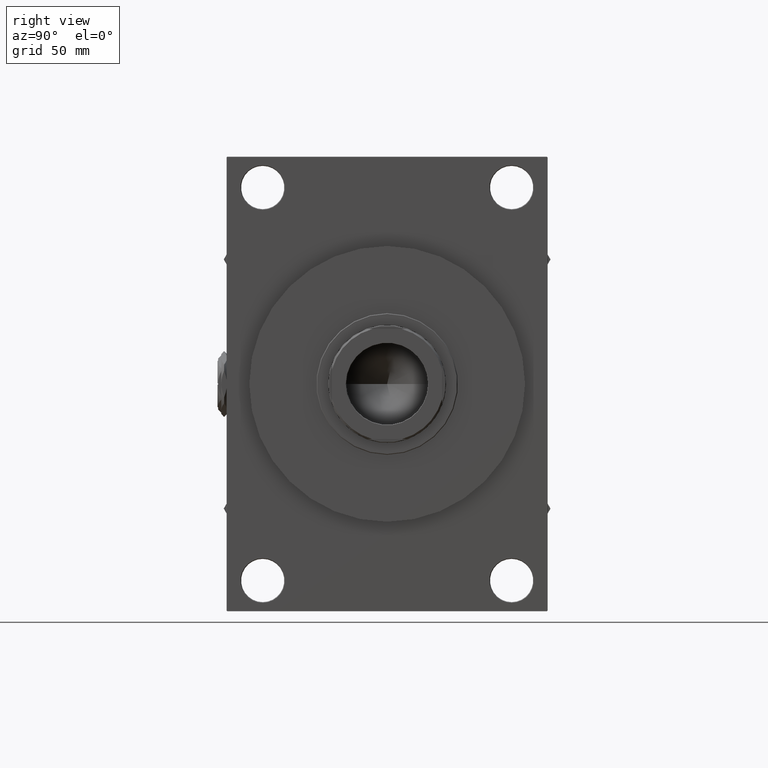
[diagram: clean part render]
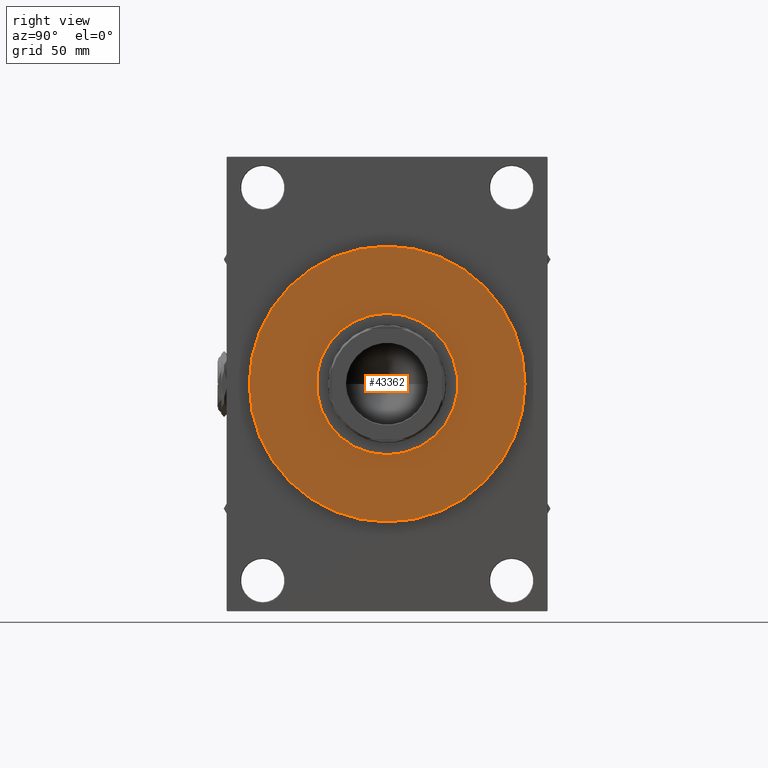
[diagram: same view with one face highlighted and labeled with its STEP entity id]
A machine part, right view. The second image highlights one B-rep face of the part: STEP entity #43362.
In plain terms, the highlighted planar face has unit normal (1, -0, -0).
Its self-contained STEP definition (entity closure, byte-faithful):
#993 = VERTEX_POINT ( 'NONE', #46422 ) ;
#3800 = EDGE_CURVE ( 'NONE', #42862, #35568, #6905, .T. ) ;
#5423 = DIRECTION ( 'NONE',  ( 1.000000000000000000, 0.000000000000000000, 0.000000000000000000 ) ) ;
#6905 = CIRCLE ( 'NONE', #14150, 54.00000000000000000 ) ;
#7253 = ORIENTED_EDGE ( 'NONE', *, *, #3800, .F. ) ;
#7515 = AXIS2_PLACEMENT_3D ( 'NONE', #10789, #33904, #49011 ) ;
#8249 = ORIENTED_EDGE ( 'NONE', *, *, #31436, .T. ) ;
#9000 = PLANE ( 'NONE',  #25473 ) ;
#9178 = CARTESIAN_POINT ( 'NONE',  ( 54.00000000000000000, 6.613092715395707467E-15, 43.25999999999999801 ) ) ;
#9186 = CARTESIAN_POINT ( 'NONE',  ( 0.000000000000000000, 0.000000000000000000, 43.25999999999999801 ) ) ;
#10334 = EDGE_LOOP ( 'NONE', ( #8249, #36475 ) ) ;
#10789 = CARTESIAN_POINT ( 'NONE',  ( 0.000000000000000000, 0.000000000000000000, 43.25999999999999801 ) ) ;
#13029 = CARTESIAN_POINT ( 'NONE',  ( 0.000000000000000000, 0.000000000000000000, 43.25999999999999801 ) ) ;
#13344 = DIRECTION ( 'NONE',  ( 1.000000000000000000, 0.000000000000000000, 0.000000000000000000 ) ) ;
#14150 = AXIS2_PLACEMENT_3D ( 'NONE', #9186, #36564, #5423 ) ;
#17042 = DIRECTION ( 'NONE',  ( 0.000000000000000000, 0.000000000000000000, 1.000000000000000000 ) ) ;
#17881 = AXIS2_PLACEMENT_3D ( 'NONE', #13029, #17042, #20082 ) ;
#20082 = DIRECTION ( 'NONE',  ( 1.000000000000000000, 0.000000000000000000, 0.000000000000000000 ) ) ;
#21292 = VERTEX_POINT ( 'NONE', #47026 ) ;
#23553 = CIRCLE ( 'NONE', #7515, 105.2500000000000000 ) ;
#25473 = AXIS2_PLACEMENT_3D ( 'NONE', #43187, #47459, #47709 ) ;
#30038 = EDGE_CURVE ( 'NONE', #35568, #42862, #39583, .T. ) ;
#30397 = CARTESIAN_POINT ( 'NONE',  ( -54.00000000000000000, 0.000000000000000000, 43.25999999999999801 ) ) ;
#31436 = EDGE_CURVE ( 'NONE', #21292, #993, #23553, .T. ) ;
#31628 = FACE_OUTER_BOUND ( 'NONE', #10334, .T. ) ;
#32510 = ORIENTED_EDGE ( 'NONE', *, *, #30038, .F. ) ;
#33394 = AXIS2_PLACEMENT_3D ( 'NONE', #40237, #47787, #13344 ) ;
#33904 = DIRECTION ( 'NONE',  ( 0.000000000000000000, 0.000000000000000000, 1.000000000000000000 ) ) ;
#35568 = VERTEX_POINT ( 'NONE', #30397 ) ;
#36475 = ORIENTED_EDGE ( 'NONE', *, *, #40066, .T. ) ;
#36564 = DIRECTION ( 'NONE',  ( 0.000000000000000000, 0.000000000000000000, 1.000000000000000000 ) ) ;
#39583 = CIRCLE ( 'NONE', #17881, 54.00000000000000000 ) ;
#40066 = EDGE_CURVE ( 'NONE', #993, #21292, #43026, .T. ) ;
#40237 = CARTESIAN_POINT ( 'NONE',  ( 0.000000000000000000, 0.000000000000000000, 43.25999999999999801 ) ) ;
#42862 = VERTEX_POINT ( 'NONE', #9178 ) ;
#43026 = CIRCLE ( 'NONE', #33394, 105.2500000000000000 ) ;
#43187 = CARTESIAN_POINT ( 'NONE',  ( 0.000000000000000000, 0.000000000000000000, 43.25999999999999801 ) ) ;
#43190 = EDGE_LOOP ( 'NONE', ( #32510, #7253 ) ) ;
#43362 = ADVANCED_FACE ( 'NONE', ( #46952, #31628 ), #9000, .T. ) ;
#46422 = CARTESIAN_POINT ( 'NONE',  ( 105.2500000000000000, 1.288940756102589170E-14, 43.25999999999999801 ) ) ;
#46952 = FACE_BOUND ( 'NONE', #43190, .T. ) ;
#47026 = CARTESIAN_POINT ( 'NONE',  ( -105.2500000000000000, 0.000000000000000000, 43.25999999999999801 ) ) ;
#47459 = DIRECTION ( 'NONE',  ( 0.000000000000000000, 0.000000000000000000, 1.000000000000000000 ) ) ;
#47709 = DIRECTION ( 'NONE',  ( 1.000000000000000000, 0.000000000000000000, -0.000000000000000000 ) ) ;
#47787 = DIRECTION ( 'NONE',  ( 0.000000000000000000, 0.000000000000000000, 1.000000000000000000 ) ) ;
#49011 = DIRECTION ( 'NONE',  ( 1.000000000000000000, 0.000000000000000000, 0.000000000000000000 ) ) ;